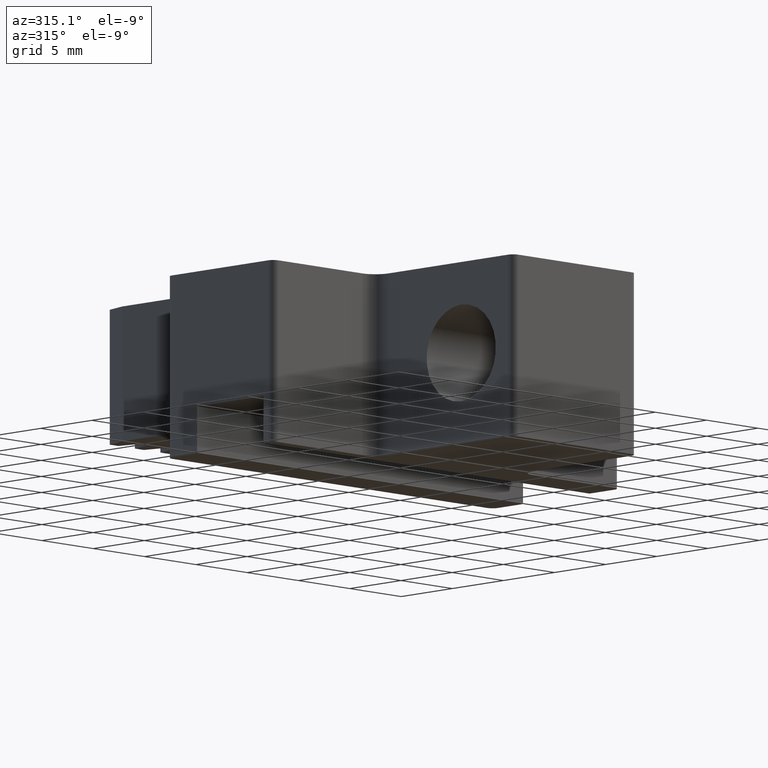
[diagram: clean part render]
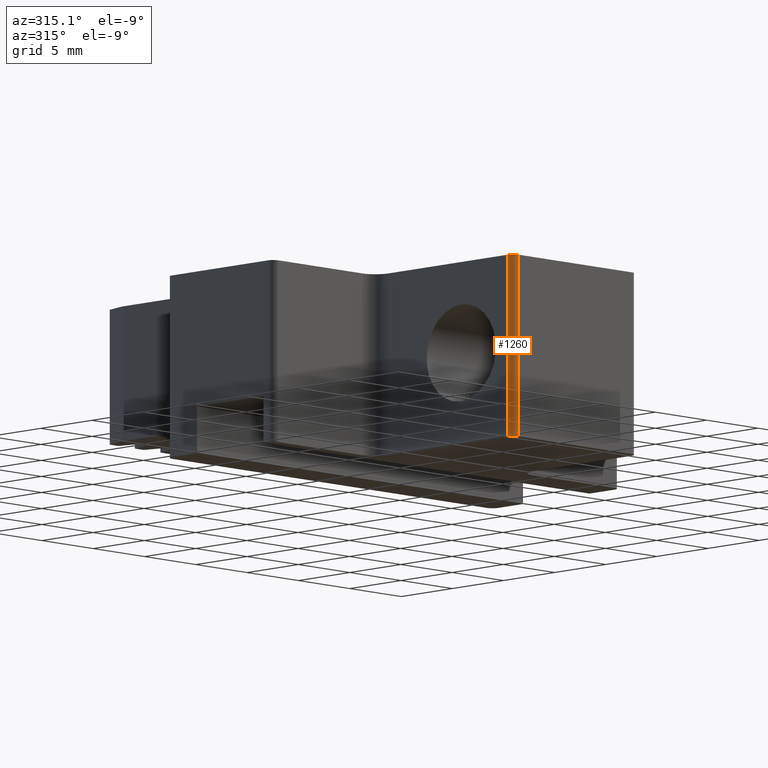
[diagram: same view with one face highlighted and labeled with its STEP entity id]
A machine part, auxiliary view. The second image highlights one B-rep face of the part: STEP entity #1260.
In plain terms, the highlighted cylindrical surface (edge-blend (fillet) strip) has radius 0.508 mm, axis along (0, 0, -1).
Its self-contained STEP definition (entity closure, byte-faithful):
#278 = EDGE_CURVE ( 'NONE', #1644, #1805, #595, .T. ) ;
#320 = EDGE_CURVE ( 'NONE', #1777, #975, #480, .T. ) ;
#369 = DIRECTION ( 'NONE',  ( 0.000000000000000000, 0.000000000000000000, -1.000000000000000000 ) ) ;
#402 = DIRECTION ( 'NONE',  ( -1.000000000000000000, 0.000000000000000000, 0.000000000000000000 ) ) ;
#466 = CARTESIAN_POINT ( 'NONE',  ( 0.1467367399999998379, -1.253999999999999782, 0.3119999999999999996 ) ) ;
#480 = LINE ( 'NONE', #927, #1410 ) ;
#497 = FACE_OUTER_BOUND ( 'NONE', #1257, .T. ) ;
#513 = DIRECTION ( 'NONE',  ( -1.000000000000000000, 0.000000000000000000, 0.000000000000000000 ) ) ;
#595 = LINE ( 'NONE', #1449, #910 ) ;
#708 = AXIS2_PLACEMENT_3D ( 'NONE', #1666, #1646, #402 ) ;
#732 = ORIENTED_EDGE ( 'NONE', *, *, #278, .F. ) ;
#872 = ORIENTED_EDGE ( 'NONE', *, *, #1399, .F. ) ;
#888 = CIRCLE ( 'NONE', #708, 0.01999999999999999001 ) ;
#907 = DIRECTION ( 'NONE',  ( -0.000000000000000000, -0.000000000000000000, 1.000000000000000000 ) ) ;
#910 = VECTOR ( 'NONE', #907, 39.37007874015748143 ) ;
#927 = CARTESIAN_POINT ( 'NONE',  ( 0.1667367399999998556, -1.273999999999999799, 0.3119999999999999996 ) ) ;
#975 = VERTEX_POINT ( 'NONE', #1606 ) ;
#977 = CIRCLE ( 'NONE', #1008, 0.01999999999999999001 ) ;
#1008 = AXIS2_PLACEMENT_3D ( 'NONE', #1223, #1049, #1314 ) ;
#1028 = ORIENTED_EDGE ( 'NONE', *, *, #320, .F. ) ;
#1035 = CARTESIAN_POINT ( 'NONE',  ( 0.1667367399999999944, -1.273999999999999799, 0.3119999999999999996 ) ) ;
#1049 = DIRECTION ( 'NONE',  ( -0.000000000000000000, 0.000000000000000000, -1.000000000000000000 ) ) ;
#1062 = DIRECTION ( 'NONE',  ( 0.000000000000000000, 0.000000000000000000, -1.000000000000000000 ) ) ;
#1078 = CYLINDRICAL_SURFACE ( 'NONE', #1328, 0.01999999999999999001 ) ;
#1223 = CARTESIAN_POINT ( 'NONE',  ( 0.1667367399999998556, -1.253999999999999782, -0.1880000000000000282 ) ) ;
#1236 = ORIENTED_EDGE ( 'NONE', *, *, #1807, .F. ) ;
#1257 = EDGE_LOOP ( 'NONE', ( #872, #732, #1236, #1028 ) ) ;
#1260 = ADVANCED_FACE ( 'NONE', ( #497 ), #1078, .T. ) ;
#1314 = DIRECTION ( 'NONE',  ( -1.000000000000000000, 0.000000000000000000, 0.000000000000000000 ) ) ;
#1328 = AXIS2_PLACEMENT_3D ( 'NONE', #1493, #369, #513 ) ;
#1362 = CARTESIAN_POINT ( 'NONE',  ( 0.1467367399999998379, -1.253999999999999782, -0.1880000000000000282 ) ) ;
#1399 = EDGE_CURVE ( 'NONE', #1805, #1777, #888, .T. ) ;
#1410 = VECTOR ( 'NONE', #1062, 39.37007874015748143 ) ;
#1449 = CARTESIAN_POINT ( 'NONE',  ( 0.1467367399999998379, -1.253999999999999782, 0.3119999999999999996 ) ) ;
#1493 = CARTESIAN_POINT ( 'NONE',  ( 0.1667367399999998556, -1.253999999999999782, 0.3119999999999999996 ) ) ;
#1606 = CARTESIAN_POINT ( 'NONE',  ( 0.1667367399999999944, -1.273999999999999799, -0.1880000000000000282 ) ) ;
#1644 = VERTEX_POINT ( 'NONE', #1362 ) ;
#1646 = DIRECTION ( 'NONE',  ( 0.000000000000000000, -0.000000000000000000, 1.000000000000000000 ) ) ;
#1666 = CARTESIAN_POINT ( 'NONE',  ( 0.1667367399999998556, -1.253999999999999782, 0.3119999999999999996 ) ) ;
#1777 = VERTEX_POINT ( 'NONE', #1035 ) ;
#1805 = VERTEX_POINT ( 'NONE', #466 ) ;
#1807 = EDGE_CURVE ( 'NONE', #975, #1644, #977, .T. ) ;